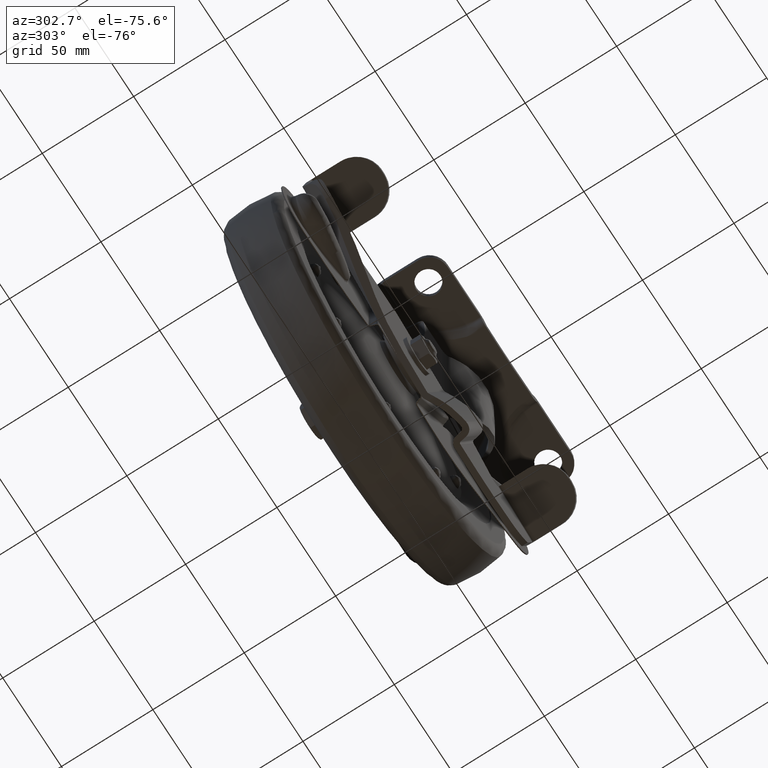
[diagram: clean part render]
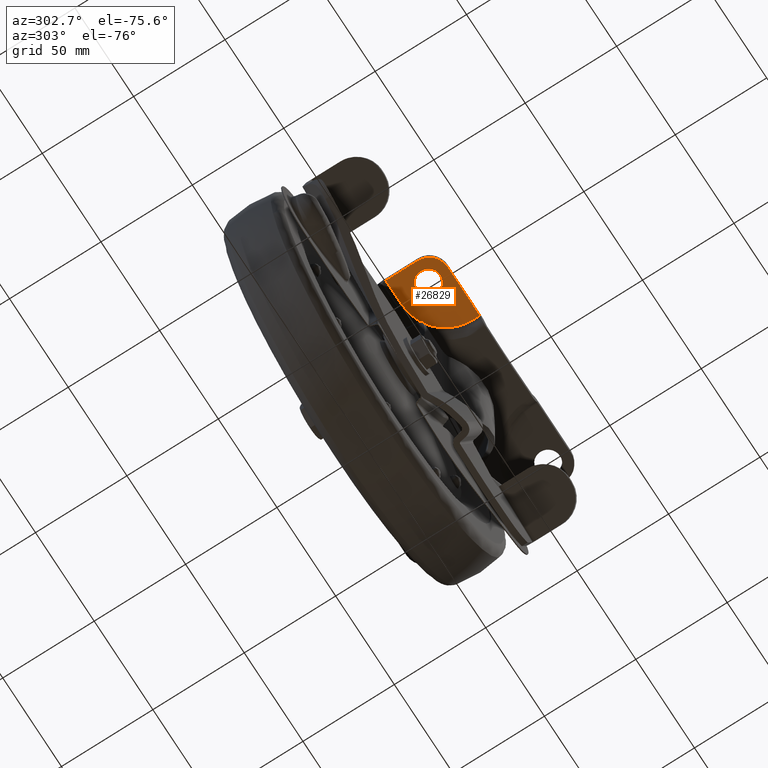
[diagram: same view with one face highlighted and labeled with its STEP entity id]
A machine part, auxiliary view. The second image highlights one B-rep face of the part: STEP entity #26829.
In plain terms, the highlighted face is a freeform B-spline surface patch.
Its self-contained STEP definition (entity closure, byte-faithful):
#18041=CARTESIAN_POINT('',(-44.500000000000000,-33.500000000000000,-3.729233000000165));
#18042=VERTEX_POINT('',#18041);
#18043=CARTESIAN_POINT('',(-50.943277518186790,-39.999752499907743,-3.729233000000165));
#18044=VERTEX_POINT('',#18043);
#18045=CARTESIAN_POINT('',(-44.500000000000000,-33.500000000000000,-3.729233000000165));
#18046=CARTESIAN_POINT('',(-44.499999999999986,-39.943522867802834,-3.729233000000165));
#18047=CARTESIAN_POINT('',(-50.943277518186790,-39.999752499907743,-3.729233000000165));
#18055=(BOUNDED_CURVE()B_SPLINE_CURVE(2,(#18045,#18046,#18047),.UNSPECIFIED.,.F.,.U.)B_SPLINE_CURVE_WITH_KNOTS((3,3),(0.500000000000000,0.748460105635914),.UNSPECIFIED.)CURVE()GEOMETRIC_REPRESENTATION_ITEM()RATIONAL_B_SPLINE_CURVE((1.0,0.708910879654267,0.996414028033062))REPRESENTATION_ITEM(''));
#18056=EDGE_CURVE('',#18042,#18044,#18055,.T.);
#18097=CARTESIAN_POINT('',(-51.056722481813210,-27.000247500092261,-3.729233000000165));
#18098=VERTEX_POINT('',#18097);
#18104=CARTESIAN_POINT('',(-51.056722481813217,-27.000247500092268,-3.729233000000165));
#18105=CARTESIAN_POINT('',(-51.028361780871478,-27.000000000000004,-3.729233000000165));
#18106=CARTESIAN_POINT('',(-51.0,-27.0,-3.729233000000165));
#18107=CARTESIAN_POINT('',(-44.500000000000000,-27.000000000000014,-3.729233000000165));
#18108=CARTESIAN_POINT('',(-44.500000000000000,-33.500000000000000,-3.729233000000165));
#18116=(BOUNDED_CURVE()B_SPLINE_CURVE(2,(#18104,#18105,#18106,#18107,#18108),.UNSPECIFIED.,.F.,.U.)B_SPLINE_CURVE_WITH_KNOTS((3,2,3),(0.248460105635914,0.250000000000000,0.500000000000000),.UNSPECIFIED.)CURVE()GEOMETRIC_REPRESENTATION_ITEM()RATIONAL_B_SPLINE_CURVE((0.996414028033062,0.998195901532280,1.0,0.707106781186547,1.0))REPRESENTATION_ITEM(''));
#18117=EDGE_CURVE('',#18098,#18042,#18116,.T.);
#18140=CARTESIAN_POINT('',(-57.499999999999993,-33.500000000000000,-3.729233000000165));
#18141=VERTEX_POINT('',#18140);
#18142=CARTESIAN_POINT('',(-50.943277518186797,-39.999752499907743,-3.729233000000165));
#18143=CARTESIAN_POINT('',(-50.971638219128515,-40.0,-3.729233000000165));
#18144=CARTESIAN_POINT('',(-51.0,-40.0,-3.729233000000165));
#18145=CARTESIAN_POINT('',(-57.500000000000000,-40.0,-3.729233000000165));
#18146=CARTESIAN_POINT('',(-57.499999999999993,-33.500000000000000,-3.729233000000165));
#18154=(BOUNDED_CURVE()B_SPLINE_CURVE(2,(#18142,#18143,#18144,#18145,#18146),.UNSPECIFIED.,.F.,.U.)B_SPLINE_CURVE_WITH_KNOTS((3,2,3),(0.748460105635913,0.750000000000000,1.0),.UNSPECIFIED.)CURVE()GEOMETRIC_REPRESENTATION_ITEM()RATIONAL_B_SPLINE_CURVE((0.996414028033062,0.998195901532280,1.0,0.707106781186547,1.0))REPRESENTATION_ITEM(''));
#18155=EDGE_CURVE('',#18044,#18141,#18154,.T.);
#18157=CARTESIAN_POINT('',(-57.499999999999993,-33.500000000000000,-3.729233000000165));
#18158=CARTESIAN_POINT('',(-57.499999999999986,-27.056477132197173,-3.729233000000165));
#18159=CARTESIAN_POINT('',(-51.056722481813196,-27.000247500092257,-3.729233000000165));
#18167=(BOUNDED_CURVE()B_SPLINE_CURVE(2,(#18157,#18158,#18159),.UNSPECIFIED.,.F.,.U.)B_SPLINE_CURVE_WITH_KNOTS((3,3),(0.0,0.248460105635914),.UNSPECIFIED.)CURVE()GEOMETRIC_REPRESENTATION_ITEM()RATIONAL_B_SPLINE_CURVE((1.0,0.708910879654267,0.996414028033062))REPRESENTATION_ITEM(''));
#18168=EDGE_CURVE('',#18141,#18098,#18167,.T.);
#22888=CARTESIAN_POINT('',(-25.092817931069401,-41.147705454420937,-3.729233000000195));
#22889=VERTEX_POINT('',#22888);
#22903=CARTESIAN_POINT('',(-48.759766426094799,-17.522904981496250,-3.729233000000195));
#22904=VERTEX_POINT('',#22903);
#22905=CARTESIAN_POINT('',(-48.759766426094842,-17.522904981496222,-3.729233000000195));
#22906=CARTESIAN_POINT('',(-25.092817931069380,-17.522904981496097,-3.729233000000197));
#22907=CARTESIAN_POINT('',(-25.092817931069359,-41.147705454420901,-3.729233000000195));
#22915=(BOUNDED_CURVE()B_SPLINE_CURVE(2,(#22905,#22906,#22907),.UNSPECIFIED.,.F.,.U.)CURVE()GEOMETRIC_REPRESENTATION_ITEM()QUASI_UNIFORM_CURVE()RATIONAL_B_SPLINE_CURVE((1.0,0.717407140921195,1.0))REPRESENTATION_ITEM(''));
#22916=EDGE_CURVE('',#22904,#22889,#22915,.T.);
#26774=CARTESIAN_POINT('',(-64.368488671840709,-16.150424138577929,-3.729233000000195));
#26775=CARTESIAN_POINT('',(-23.224328255889880,-16.150424138577929,-3.729233000000195));
#26776=CARTESIAN_POINT('',(-64.368488671840709,-46.372481579911437,-3.729233000000195));
#26777=CARTESIAN_POINT('',(-23.224328255889880,-46.372481579911437,-3.729233000000195));
#26778=B_SPLINE_SURFACE_WITH_KNOTS('',1,1,((#26774,#26776),(#26775,#26777)),.UNSPECIFIED.,.F.,.F.,.U.,(2,2),(2,2),(0.0,41.144160415950822),(0.0,30.222057441333511),.UNSPECIFIED.);
#26779=CARTESIAN_POINT('',(-25.092817931069401,-45.0,-3.729233000000195));
#26780=VERTEX_POINT('',#26779);
#26781=CARTESIAN_POINT('',(-25.092817931069401,-41.147705454420937,-3.729233000000195));
#26782=CARTESIAN_POINT('',(-25.092817931069401,-45.0,-3.729233000000195));
#26783=QUASI_UNIFORM_CURVE('',1,(#26781,#26782),.UNSPECIFIED.,.F.,.U.);
#26784=EDGE_CURVE('',#22889,#26780,#26783,.T.);
#26785=ORIENTED_EDGE('',*,*,#26784,.T.);
#26786=CARTESIAN_POINT('',(-52.500000000000000,-45.0,-3.729233000000165));
#26787=VERTEX_POINT('',#26786);
#26788=CARTESIAN_POINT('',(-25.092817931069401,-45.0,-3.729233000000195));
#26789=CARTESIAN_POINT('',(-52.500000000000000,-45.0,-3.729233000000165));
#26790=QUASI_UNIFORM_CURVE('',1,(#26788,#26789),.UNSPECIFIED.,.F.,.U.);
#26791=EDGE_CURVE('',#26780,#26787,#26790,.T.);
#26792=ORIENTED_EDGE('',*,*,#26791,.T.);
#26793=CARTESIAN_POINT('',(-62.500000000000000,-35.0,-3.729233000000165));
#26794=VERTEX_POINT('',#26793);
#26795=CARTESIAN_POINT('',(-52.500000000000000,-45.000000000000007,-3.729233000000165));
#26796=CARTESIAN_POINT('',(-62.500000000000000,-45.000000000000014,-3.729233000000165));
#26797=CARTESIAN_POINT('',(-62.500000000000000,-35.0,-3.729233000000165));
#26805=(BOUNDED_CURVE()B_SPLINE_CURVE(2,(#26795,#26796,#26797),.UNSPECIFIED.,.F.,.U.)CURVE()GEOMETRIC_REPRESENTATION_ITEM()QUASI_UNIFORM_CURVE()RATIONAL_B_SPLINE_CURVE((1.0,0.707106781186548,1.0))REPRESENTATION_ITEM(''));
#26806=EDGE_CURVE('',#26787,#26794,#26805,.T.);
#26807=ORIENTED_EDGE('',*,*,#26806,.T.);
#26808=CARTESIAN_POINT('',(-62.500000000000000,-17.522904981496250,-3.729233000000195));
#26809=VERTEX_POINT('',#26808);
#26810=CARTESIAN_POINT('',(-62.500000000000000,-35.0,-3.729233000000165));
#26811=CARTESIAN_POINT('',(-62.500000000000000,-17.522904981496250,-3.729233000000195));
#26812=QUASI_UNIFORM_CURVE('',1,(#26810,#26811),.UNSPECIFIED.,.F.,.U.);
#26813=EDGE_CURVE('',#26794,#26809,#26812,.T.);
#26814=ORIENTED_EDGE('',*,*,#26813,.T.);
#26815=CARTESIAN_POINT('',(-62.500000000000000,-17.522904981496250,-3.729233000000195));
#26816=CARTESIAN_POINT('',(-48.759766426094799,-17.522904981496250,-3.729233000000195));
#26817=QUASI_UNIFORM_CURVE('',1,(#26815,#26816),.UNSPECIFIED.,.F.,.U.);
#26818=EDGE_CURVE('',#26809,#22904,#26817,.T.);
#26819=ORIENTED_EDGE('',*,*,#26818,.T.);
#26820=ORIENTED_EDGE('',*,*,#22916,.T.);
#26821=EDGE_LOOP('',(#26785,#26792,#26807,#26814,#26819,#26820));
#26822=FACE_OUTER_BOUND('',#26821,.T.);
#26823=ORIENTED_EDGE('',*,*,#18168,.F.);
#26824=ORIENTED_EDGE('',*,*,#18155,.F.);
#26825=ORIENTED_EDGE('',*,*,#18056,.F.);
#26826=ORIENTED_EDGE('',*,*,#18117,.F.);
#26827=EDGE_LOOP('',(#26823,#26824,#26825,#26826));
#26828=FACE_BOUND('',#26827,.T.);
#26829=ADVANCED_FACE('',(#26822,#26828),#26778,.T.);